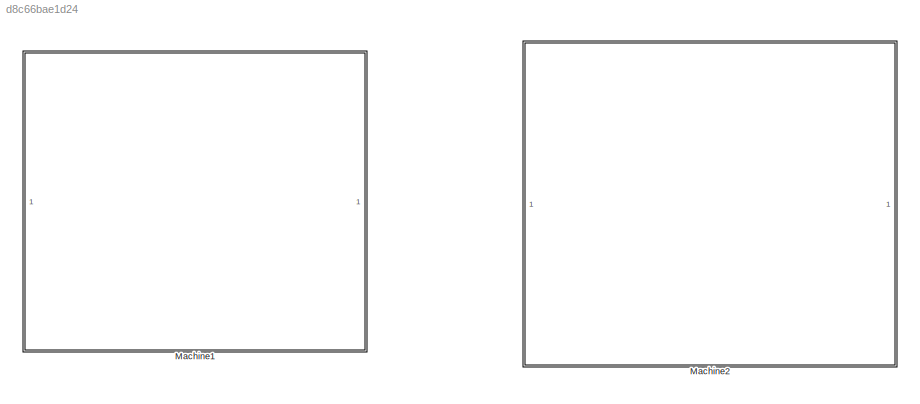
MODEL slx_d8c66bae1d24
KIND model
CONFIG AbsTol = auto
CONFIG EnableMultiTasking = off
CONFIG FixedStep = auto
CONFIG MaxStep = auto
CONFIG MinStep = auto
CONFIG RelTol = 1e-3
CONFIG SampleTimeConstraint = Unconstrained
CONFIG SolverName = VariableStepAuto
CONFIG StartTime = 0.0
CONFIG StopTime = 10.0
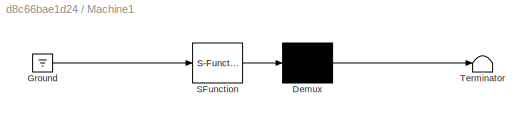
BLOCK [SubSystem] Machine1
  ErrorFcn = Stateflow.Translate.translate
  PermitHierarchicalResolution = ExplicitOnly
  Ports = []
  RequestExecContextInheritance = off
  SFBlockType = Chart
  TreatAsAtomicUnit = on
BLOCK [Demux] Machine1/ Demux 
  Outputs = 1
  Ports = [1, 1]
BLOCK [Ground] Machine1/ Ground 
BLOCK [S-Function] Machine1/ SFunction 
  EnableBusSupport = off
  FunctionName = sf_sfun
  PortCounts = [1 1]
  Ports = [1, 1]
  SFcnIsStateOwnerBlock = off
  SFunctionDeploymentMode = off
  Tag = Stateflow S-Function 3
BLOCK [Terminator] Machine1/ Terminator 
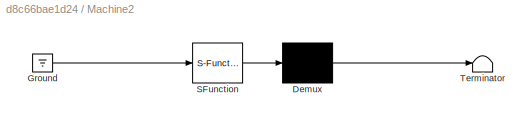
BLOCK [SubSystem] Machine2
  ErrorFcn = Stateflow.Translate.translate
  PermitHierarchicalResolution = ExplicitOnly
  Ports = []
  RequestExecContextInheritance = off
  SFBlockType = Chart
  TreatAsAtomicUnit = on
BLOCK [Demux] Machine2/ Demux 
  Outputs = 1
  Ports = [1, 1]
BLOCK [Ground] Machine2/ Ground 
BLOCK [S-Function] Machine2/ SFunction 
  EnableBusSupport = off
  FunctionName = sf_sfun
  PortCounts = [1 1]
  Ports = [1, 1]
  SFcnIsStateOwnerBlock = off
  SFunctionDeploymentMode = off
  Tag = Stateflow S-Function 1
BLOCK [Terminator] Machine2/ Terminator 
CHART Machine2 states=15 transitions=10
  STATE_LABEL "If buffer content is zero, we can't leave A until upstream machine has placed a part in the buffer. No part can be drawn from the buffer until then.\n "
  STATE_LABEL "This only happens when the first machine fails OR is in a non-productive state (a buffer isn't changing)."
  STATE_LABEL "The only way to have a zero buffer is if downstream machine removes a part while the upstream hasn't put a part in."
  STATE_LABEL 'A'
  STATE_LABEL 'i.e. upstream is in b, c, ..., g'
  STATE_LABEL 'downstream machine is in A'
  STATE_LABEL 'A represents receiving a part'
  STATE_LABEL 'Have to add logic about getting into and out of this starved/blocked \ncondition'
  STATE_LABEL 'Assumption: infinite space downstream; infinite parts upstream'
  STATE_LABEL 'B'
  STATE_LABEL 'C'
  STATE_LABEL 'D'
  STATE_LABEL 'error trapping code to make sure probabilities of exiting a node add to one.'
  STATE_LABEL 'B,C,D represent processing of part'
  STATE_LABEL 'Model helps us decide expected time to complete a part when good probabilities are chosen'
CHART Machine1 states=7 transitions=19
  STATE_LABEL 'a'
  STATE_LABEL 'b'
  STATE_LABEL 'c'
  STATE_LABEL 'd'
  STATE_LABEL 'e'
  STATE_LABEL 'f'
  STATE_LABEL 'g'
CHART  states=0 transitions=0
CHART  states=0 transitions=0
